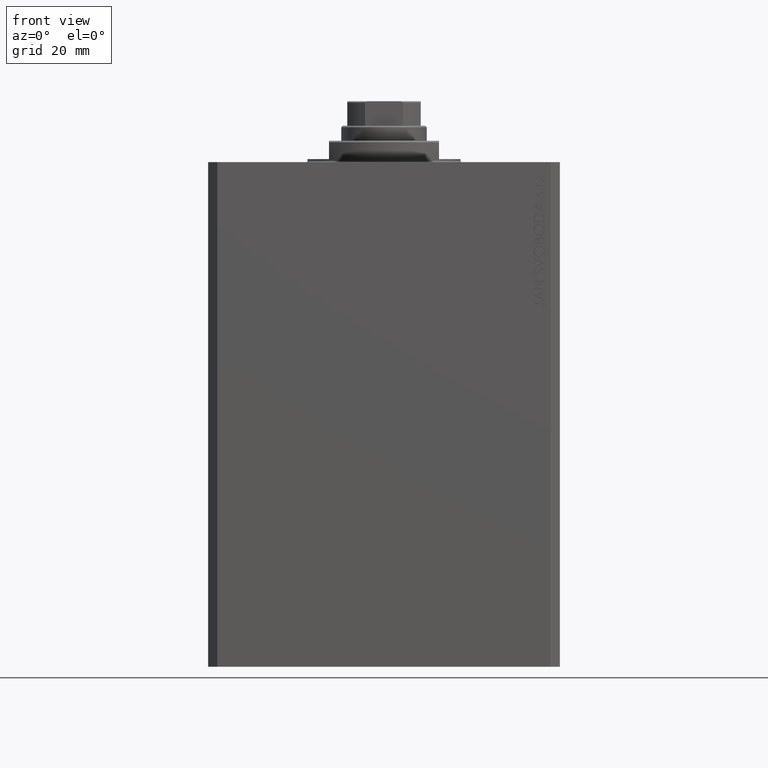
[diagram: clean part render]
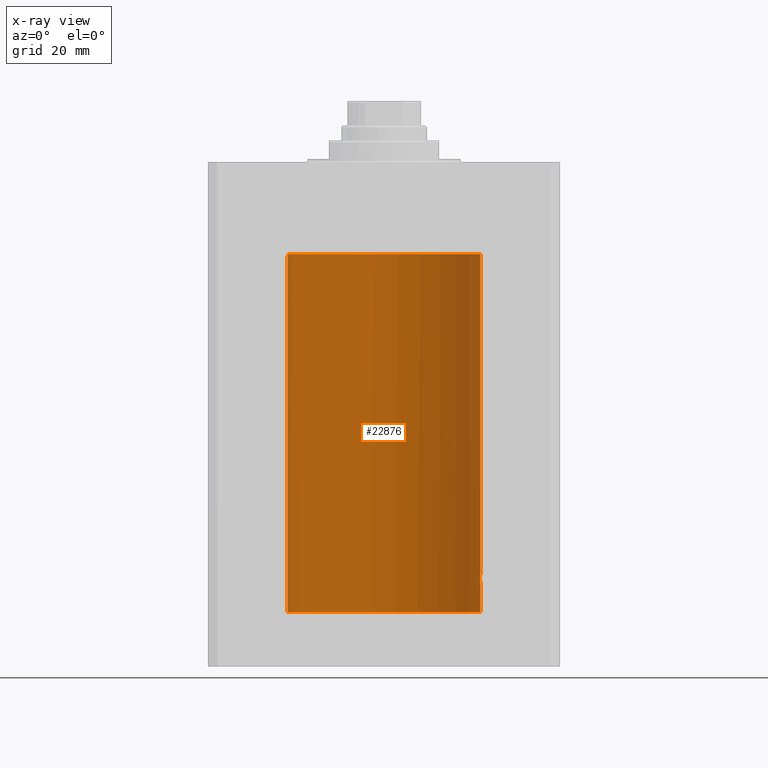
[diagram: x-ray — body ghosted, one internal face saturated and labeled with its STEP entity id]
A machine part, front view, then the same camera in x-ray: the body is ghosted and one INTERNAL B-rep face — a face not visible from any outside direction — is saturated and labeled: STEP entity #22876.
In plain terms, the highlighted cylindrical surface (partial cylindrical patch) has radius 31.5 mm, axis along (0, 0, 1).
Its self-contained STEP definition (entity closure, byte-faithful):
#323 = CARTESIAN_POINT ( 'NONE',  ( 31.50000000000000000, -8.369814204394935255E-24, -134.0000000000000000 ) ) ;
#1052 = VERTEX_POINT ( 'NONE', #9125 ) ;
#1655 = VERTEX_POINT ( 'NONE', #31224 ) ;
#2161 = DIRECTION ( 'NONE',  ( -0.000000000000000000, -0.000000000000000000, 1.000000000000000000 ) ) ;
#2342 = DIRECTION ( 'NONE',  ( 0.000000000000000000, 0.000000000000000000, 1.000000000000000000 ) ) ;
#3021 = CARTESIAN_POINT ( 'NONE',  ( 31.47656968928225751, 1.219587704424718533, -137.5905023401450933 ) ) ;
#3144 = B_SPLINE_CURVE_WITH_KNOTS ( 'NONE', 3,
 ( #44486, #7455, #37049, #4579, #29895, #19112, #26049, #25350, #40174, #11250, #40646, #39951, #36815, #36582, #11482, #33702, #14365, #323 ),
 .UNSPECIFIED., .F., .F.,
 ( 4, 2, 2, 2, 2, 2, 2, 2, 4 ),
 ( 0.003127956870251400769, 0.003518772842989208692, 0.003909588815727015748, 0.004300404788464823672, 0.004691220761202631595, 0.005082036733940439518, 0.005472852706678247442, 0.005863668679416054498, 0.006254484652153862421 ),
 .UNSPECIFIED. ) ;
#3217 = EDGE_CURVE ( 'NONE', #1052, #20820, #5033, .T. ) ;
#3880 = VERTEX_POINT ( 'NONE', #17807 ) ;
#3932 = CARTESIAN_POINT ( 'NONE',  ( 31.43644381923627051, 2.000000000000389910, -136.0000000000000000 ) ) ;
#3990 = AXIS2_PLACEMENT_3D ( 'NONE', #43077, #28717, #20842 ) ;
#4228 = B_SPLINE_CURVE_WITH_KNOTS ( 'NONE', 3,
 ( #39483, #42841, #6533, #13425, #9844, #17472, #24639, #47136, #39004, #27767 ),
 .UNSPECIFIED., .F., .F.,
 ( 4, 2, 2, 2, 4 ),
 ( 0.000000000000000000, 0.0004921177670202515984, 0.0009842355340405031967, 0.001476353301060754795, 0.001968471068081006393 ),
 .UNSPECIFIED. ) ;
#4300 = EDGE_CURVE ( 'NONE', #35460, #1655, #20282, .T. ) ;
#4579 = CARTESIAN_POINT ( 'NONE',  ( 31.44047330683569186, 1.935793094480593224, -135.4805747813048526 ) ) ;
#5033 = CIRCLE ( 'NONE', #21790, 31.50000000000000000 ) ;
#5198 = VERTEX_POINT ( 'NONE', #46891 ) ;
#6533 = CARTESIAN_POINT ( 'NONE',  ( -31.46581137650060356, 1.472225318046969322, -30.36367113479343161 ) ) ;
#7455 = CARTESIAN_POINT ( 'NONE',  ( 31.43644381923627051, 2.000000000000391687, -135.8695436863447412 ) ) ;
#8359 = CARTESIAN_POINT ( 'NONE',  ( 0.000000000000000000, 0.000000000000000000, -147.1000000000000227 ) ) ;
#8744 = ORIENTED_EDGE ( 'NONE', *, *, #16570, .T. ) ;
#9005 = LINE ( 'NONE', #38162, #18420 ) ;
#9125 = CARTESIAN_POINT ( 'NONE',  ( 31.50000000000000000, 0.000000000000000000, -30.10000000000000142 ) ) ;
#9844 = CARTESIAN_POINT ( 'NONE',  ( -31.48136522371477852, 1.092934591159441693, -30.68296962504550507 ) ) ;
#9919 = CARTESIAN_POINT ( 'NONE',  ( 31.45161214644910075, 1.748160858796773631, -137.0059024499661291 ) ) ;
#11202 = EDGE_CURVE ( 'NONE', #11474, #36180, #35817, .T. ) ;
#11250 = CARTESIAN_POINT ( 'NONE',  ( 31.47243113015943550, 1.320912165297383201, -134.4924797776056948 ) ) ;
#11474 = VERTEX_POINT ( 'NONE', #42855 ) ;
#11482 = CARTESIAN_POINT ( 'NONE',  ( 31.49597888575898708, 0.5193621964009151881, -134.0641961002934295 ) ) ;
#13115 = CARTESIAN_POINT ( 'NONE',  ( -31.50000000000000000, 3.857637417314162689E-15, -147.1000000000000227 ) ) ;
#13294 = DIRECTION ( 'NONE',  ( 1.000000000000000000, 0.000000000000000000, 0.000000000000000000 ) ) ;
#13297 = DIRECTION ( 'NONE',  ( -0.000000000000000000, -0.000000000000000000, 1.000000000000000000 ) ) ;
#13425 = CARTESIAN_POINT ( 'NONE',  ( -31.47622270810187928, 1.229689797707025578, -30.58584657277510388 ) ) ;
#13752 = VECTOR ( 'NONE', #30035, 1000.000000000000000 ) ;
#13974 = CARTESIAN_POINT ( 'NONE',  ( 31.47236118406704364, 1.322499398534440429, -137.5059945699081823 ) ) ;
#13980 = ORIENTED_EDGE ( 'NONE', *, *, #3217, .T. ) ;
#14365 = CARTESIAN_POINT ( 'NONE',  ( 31.50000000000000711, 0.1305169792915967519, -133.9999999999999432 ) ) ;
#14399 = CARTESIAN_POINT ( 'NONE',  ( -31.50000000000000000, 3.857637417314162689E-15, -147.1000000000000227 ) ) ;
#14750 = LINE ( 'NONE', #18560, #13752 ) ;
#16570 = EDGE_CURVE ( 'NONE', #3880, #1052, #14750, .T. ) ;
#17074 = CARTESIAN_POINT ( 'NONE',  ( 31.43644381923627762, 2.000000000000387246, -136.2610318865086185 ) ) ;
#17472 = CARTESIAN_POINT ( 'NONE',  ( -31.49006417643538569, 0.8041893641746242771, -30.83852447520479956 ) ) ;
#17546 = CARTESIAN_POINT ( 'NONE',  ( 31.45992223434330981, 1.599182806012582558, -137.2291100714819265 ) ) ;
#17807 = CARTESIAN_POINT ( 'NONE',  ( 31.50000000000000000, -8.369814204394935255E-24, -134.0000000000000000 ) ) ;
#18420 = VECTOR ( 'NONE', #13297, 1000.000000000000000 ) ;
#18560 = CARTESIAN_POINT ( 'NONE',  ( 31.50000000000000000, 0.000000000000000000, -147.1000000000000227 ) ) ;
#19112 = CARTESIAN_POINT ( 'NONE',  ( 31.44869941755756315, 1.797728078038221655, -135.1138051504310056 ) ) ;
#19337 = DIRECTION ( 'NONE',  ( -0.000000000000000000, -0.000000000000000000, 1.000000000000000000 ) ) ;
#19680 = EDGE_CURVE ( 'NONE', #5198, #11474, #9005, .T. ) ;
#20282 = LINE ( 'NONE', #13115, #27167 ) ;
#20360 = EDGE_LOOP ( 'NONE', ( #44437, #43603, #36975, #22512, #20729, #8744, #13980, #39596 ) ) ;
#20729 = ORIENTED_EDGE ( 'NONE', *, *, #20856, .T. ) ;
#20757 = EDGE_CURVE ( 'NONE', #20820, #1655, #4228, .T. ) ;
#20801 = EDGE_CURVE ( 'NONE', #5198, #35460, #45187, .T. ) ;
#20820 = VERTEX_POINT ( 'NONE', #21540 ) ;
#20842 = DIRECTION ( 'NONE',  ( 1.000000000000000000, 0.000000000000000000, 0.000000000000000000 ) ) ;
#20856 = EDGE_CURVE ( 'NONE', #36180, #3880, #3144, .T. ) ;
#21540 = CARTESIAN_POINT ( 'NONE',  ( -31.45568311132346295, 1.670329308849017202, -30.10000000000000142 ) ) ;
#21790 = AXIS2_PLACEMENT_3D ( 'NONE', #35031, #2342, #13294 ) ;
#22512 = ORIENTED_EDGE ( 'NONE', *, *, #11202, .T. ) ;
#22876 = ADVANCED_FACE ( 'NONE', ( #37988 ), #44938, .F. ) ;
#24639 = CARTESIAN_POINT ( 'NONE',  ( -31.49373304996191791, 0.6483417414291828829, -30.89916737967284988 ) ) ;
#25350 = CARTESIAN_POINT ( 'NONE',  ( 31.45991621267056004, 1.590260824275577356, -134.7801457396745093 ) ) ;
#26049 = CARTESIAN_POINT ( 'NONE',  ( 31.45226167581968113, 1.735077252816690230, -134.9967648169954657 ) ) ;
#27167 = VECTOR ( 'NONE', #2161, 1000.000000000000000 ) ;
#27767 = CARTESIAN_POINT ( 'NONE',  ( -31.50000000000000000, 3.857542963677526976E-15, -30.99999999999999645 ) ) ;
#28717 = DIRECTION ( 'NONE',  ( 0.000000000000000000, 0.000000000000000000, 1.000000000000000000 ) ) ;
#29895 = CARTESIAN_POINT ( 'NONE',  ( 31.44280827872263018, 1.897980201673368450, -135.3559202626804563 ) ) ;
#30035 = DIRECTION ( 'NONE',  ( -0.000000000000000000, -0.000000000000000000, 1.000000000000000000 ) ) ;
#31224 = CARTESIAN_POINT ( 'NONE',  ( -31.50000000000000000, 3.857542963677526976E-15, -30.99999999999999645 ) ) ;
#31421 = CARTESIAN_POINT ( 'NONE',  ( 31.43989559156923264, 1.947546710638696110, -136.5243738522823378 ) ) ;
#31662 = CARTESIAN_POINT ( 'NONE',  ( 31.50000000000000711, 0.1322106156816646172, -138.0000000000000568 ) ) ;
#33702 = CARTESIAN_POINT ( 'NONE',  ( 31.49916210907646175, 0.2630769646869162703, -134.0130766648357508 ) ) ;
#34158 = DIRECTION ( 'NONE',  ( 1.000000000000000000, 0.000000000000000000, 0.000000000000000000 ) ) ;
#35031 = CARTESIAN_POINT ( 'NONE',  ( 0.000000000000000000, 0.000000000000000000, -30.10000000000000142 ) ) ;
#35241 = CARTESIAN_POINT ( 'NONE',  ( 31.49916827061299784, 0.2622045237009093532, -137.9870193222189130 ) ) ;
#35460 = VERTEX_POINT ( 'NONE', #14399 ) ;
#35715 = CARTESIAN_POINT ( 'NONE',  ( 31.48773468680478160, 0.8872681233992232297, -137.7972062396702313 ) ) ;
#35817 = B_SPLINE_CURVE_WITH_KNOTS ( 'NONE', 3,
 ( #43378, #31662, #35241, #42919, #35953, #35715, #46741, #3021, #13974, #17546, #9919, #31421, #17074, #38832 ),
 .UNSPECIFIED., .F., .F.,
 ( 4, 2, 2, 2, 2, 2, 4 ),
 ( 5.096331421419789159E-18, 0.0003909946087814292703, 0.0007819892175628534448, 0.001172983826344277999, 0.001563978435125702553, 0.002345967652688551661, 0.003127956870251400769 ),
 .UNSPECIFIED. ) ;
#35953 = CARTESIAN_POINT ( 'NONE',  ( 31.49362851683618914, 0.6450141649083286355, -137.8976700761137124 ) ) ;
#36180 = VERTEX_POINT ( 'NONE', #3932 ) ;
#36582 = CARTESIAN_POINT ( 'NONE',  ( 31.49364883223205425, 0.6440257487116654023, -134.1019945078124351 ) ) ;
#36815 = CARTESIAN_POINT ( 'NONE',  ( 31.48776132734998967, 0.8863252928784803863, -134.2023288708493283 ) ) ;
#36975 = ORIENTED_EDGE ( 'NONE', *, *, #19680, .T. ) ;
#37049 = CARTESIAN_POINT ( 'NONE',  ( 31.43728213781475489, 1.986944500966170146, -135.7370380017273135 ) ) ;
#37988 = FACE_OUTER_BOUND ( 'NONE', #20360, .T. ) ;
#38162 = CARTESIAN_POINT ( 'NONE',  ( 31.50000000000000000, 0.000000000000000000, -147.1000000000000227 ) ) ;
#38832 = CARTESIAN_POINT ( 'NONE',  ( 31.43644381923627051, 2.000000000000389910, -136.0000000000000000 ) ) ;
#39004 = CARTESIAN_POINT ( 'NONE',  ( -31.50000000000000000, 0.1657740143102494623, -31.00000000000000711 ) ) ;
#39483 = CARTESIAN_POINT ( 'NONE',  ( -31.45568311132346295, 1.670329308849017202, -30.10000000000000142 ) ) ;
#39596 = ORIENTED_EDGE ( 'NONE', *, *, #20757, .T. ) ;
#39951 = CARTESIAN_POINT ( 'NONE',  ( 31.48420706794360058, 1.003217712170305864, -134.2649149328429132 ) ) ;
#40174 = CARTESIAN_POINT ( 'NONE',  ( 31.46404119587053927, 1.507594711990238201, -134.6791728524376310 ) ) ;
#40646 = CARTESIAN_POINT ( 'NONE',  ( 31.47656038302703507, 1.219789706799898843, -134.4096921557544988 ) ) ;
#42841 = CARTESIAN_POINT ( 'NONE',  ( -31.46054086632929625, 1.578847945691098875, -30.23891272917829909 ) ) ;
#42855 = CARTESIAN_POINT ( 'NONE',  ( 31.50000000000000000, -5.244345426788806144E-15, -138.0000000000000000 ) ) ;
#42919 = CARTESIAN_POINT ( 'NONE',  ( 31.49600115550921231, 0.5179422407981826293, -137.9361644646872378 ) ) ;
#43077 = CARTESIAN_POINT ( 'NONE',  ( 0.000000000000000000, 0.000000000000000000, -147.1000000000000227 ) ) ;
#43378 = CARTESIAN_POINT ( 'NONE',  ( 31.50000000000000000, -5.244345426788806144E-15, -138.0000000000000000 ) ) ;
#43603 = ORIENTED_EDGE ( 'NONE', *, *, #20801, .F. ) ;
#44437 = ORIENTED_EDGE ( 'NONE', *, *, #4300, .F. ) ;
#44486 = CARTESIAN_POINT ( 'NONE',  ( 31.43644381923627051, 2.000000000000389910, -136.0000000000000000 ) ) ;
#44938 = CYLINDRICAL_SURFACE ( 'NONE', #45900, 31.50000000000000000 ) ;
#45187 = CIRCLE ( 'NONE', #3990, 31.50000000000000000 ) ;
#45900 = AXIS2_PLACEMENT_3D ( 'NONE', #8359, #19337, #34158 ) ;
#46741 = CARTESIAN_POINT ( 'NONE',  ( 31.48424227690099642, 1.002158581476550347, -137.7357332860677843 ) ) ;
#46891 = CARTESIAN_POINT ( 'NONE',  ( 31.50000000000000000, 0.000000000000000000, -147.1000000000000227 ) ) ;
#47136 = CARTESIAN_POINT ( 'NONE',  ( -31.49869211956624682, 0.3285775292346077570, -30.97970213844783416 ) ) ;